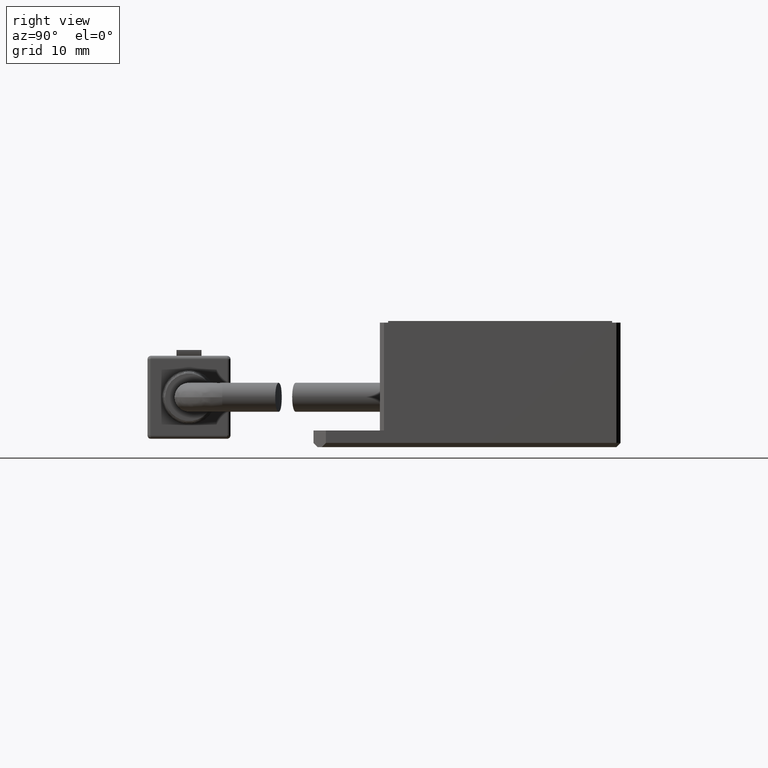
[diagram: clean part render]
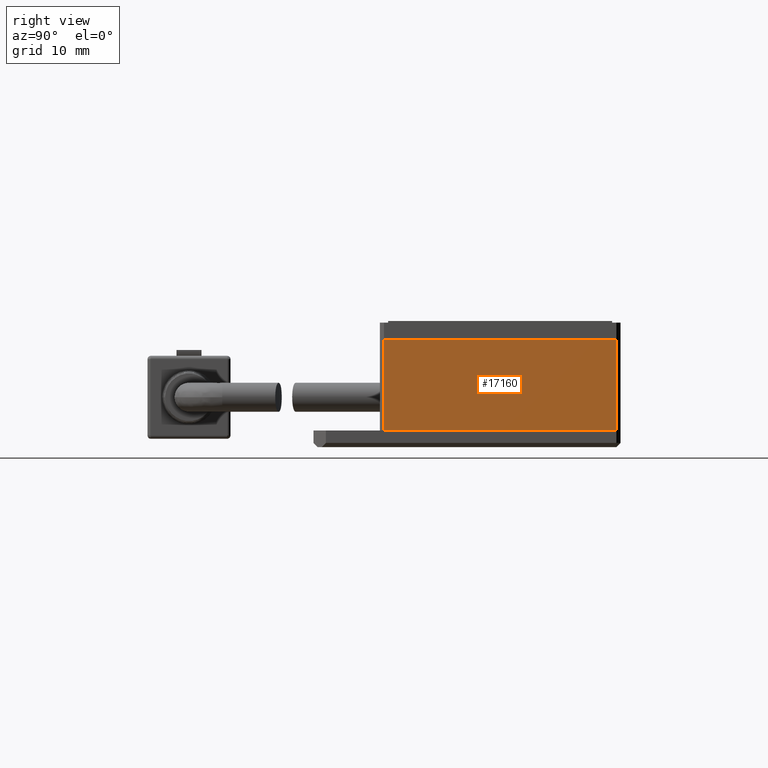
[diagram: same view with one face highlighted and labeled with its STEP entity id]
A machine part, right view. The second image highlights one B-rep face of the part: STEP entity #17160.
In plain terms, the highlighted planar face has unit normal (-1, 0, 0).
Its self-contained STEP definition (entity closure, byte-faithful):
#71 = CARTESIAN_POINT ( 'NONE',  ( 18.97059946544482800, -14.55364642993505300, 10.99999999998363100 ) ) ;
#1071 = VECTOR ( 'NONE', #25096, 1000.000000000000000 ) ;
#1373 = AXIS2_PLACEMENT_3D ( 'NONE', #17724, #5397, #19783 ) ;
#1468 = DIRECTION ( 'NONE',  ( -0.0000000000000000000, -1.000000000000000000, -0.0000000000000000000 ) ) ;
#2188 = DIRECTION ( 'NONE',  ( 0.0000000000000000000, 0.0000000000000000000, 1.000000000000000000 ) ) ;
#4330 = LINE ( 'NONE', #18892, #9162 ) ;
#4439 = VECTOR ( 'NONE', #2188, 1000.000000000000000 ) ;
#5397 = DIRECTION ( 'NONE',  ( -1.000000000000000000, 0.0000000000000000000, 0.0000000000000000000 ) ) ;
#7931 = ORIENTED_EDGE ( 'NONE', *, *, #15653, .F. ) ;
#8028 = EDGE_CURVE ( 'NONE', #17974, #24413, #15366, .T. ) ;
#8172 = EDGE_LOOP ( 'NONE', ( #20070, #11054, #16284, #7931 ) ) ;
#8753 = EDGE_CURVE ( 'NONE', #20421, #13182, #4330, .T. ) ;
#9162 = VECTOR ( 'NONE', #18982, 1000.000000000000000 ) ;
#9449 = EDGE_CURVE ( 'NONE', #13182, #24413, #17461, .T. ) ;
#9456 = PLANE ( 'NONE',  #1373 ) ;
#10286 = CARTESIAN_POINT ( 'NONE',  ( 18.97059946544482000, -14.55364642993505500, 10.99999999998363100 ) ) ;
#11054 = ORIENTED_EDGE ( 'NONE', *, *, #9449, .T. ) ;
#11683 = CARTESIAN_POINT ( 'NONE',  ( 18.97059946544482800, 13.44635357006495400, -1.637232016626910500E-011 ) ) ;
#13182 = VERTEX_POINT ( 'NONE', #20671 ) ;
#15366 = LINE ( 'NONE', #71, #4439 ) ;
#15653 = EDGE_CURVE ( 'NONE', #20421, #17974, #24110, .T. ) ;
#16284 = ORIENTED_EDGE ( 'NONE', *, *, #8028, .F. ) ;
#17160 = ADVANCED_FACE ( 'NONE', ( #20788 ), #9456, .F. ) ;
#17461 = LINE ( 'NONE', #23054, #1071 ) ;
#17724 = CARTESIAN_POINT ( 'NONE',  ( 18.97059946544482800, -15.05364642993505200, 10.99999999998363100 ) ) ;
#17974 = VERTEX_POINT ( 'NONE', #21584 ) ;
#18696 = VECTOR ( 'NONE', #1468, 1000.000000000000000 ) ;
#18892 = CARTESIAN_POINT ( 'NONE',  ( 18.97059946544482800, 13.44635357006495400, 10.99999999998363100 ) ) ;
#18982 = DIRECTION ( 'NONE',  ( 0.0000000000000000000, 0.0000000000000000000, 1.000000000000000000 ) ) ;
#19783 = DIRECTION ( 'NONE',  ( 0.0000000000000000000, 0.0000000000000000000, 1.000000000000000000 ) ) ;
#20070 = ORIENTED_EDGE ( 'NONE', *, *, #8753, .T. ) ;
#20421 = VERTEX_POINT ( 'NONE', #11683 ) ;
#20671 = CARTESIAN_POINT ( 'NONE',  ( 18.97059946544482800, 13.44635357006495400, 10.99999999998363100 ) ) ;
#20788 = FACE_OUTER_BOUND ( 'NONE', #8172, .T. ) ;
#21584 = CARTESIAN_POINT ( 'NONE',  ( 18.97059946544483500, -14.55364642993505200, -1.637101912366212300E-011 ) ) ;
#21883 = CARTESIAN_POINT ( 'NONE',  ( 18.97059946544482800, 13.94635357006495000, -1.636971808105514000E-011 ) ) ;
#23054 = CARTESIAN_POINT ( 'NONE',  ( 18.97059946544482800, 13.94635357006495000, 10.99999999998363100 ) ) ;
#24110 = LINE ( 'NONE', #21883, #18696 ) ;
#24413 = VERTEX_POINT ( 'NONE', #10286 ) ;
#25096 = DIRECTION ( 'NONE',  ( -0.0000000000000000000, -1.000000000000000000, -0.0000000000000000000 ) ) ;